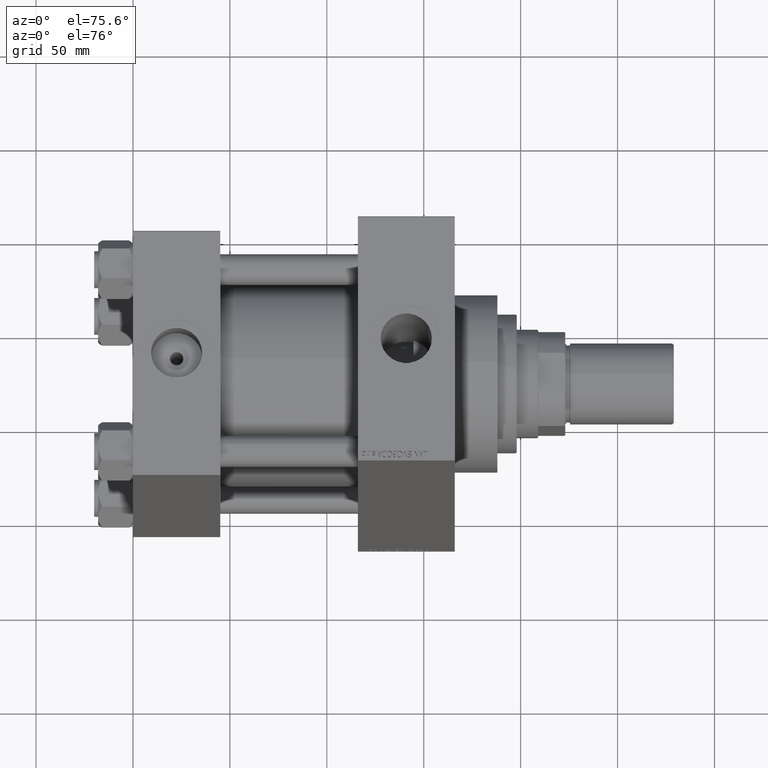
[diagram: clean part render]
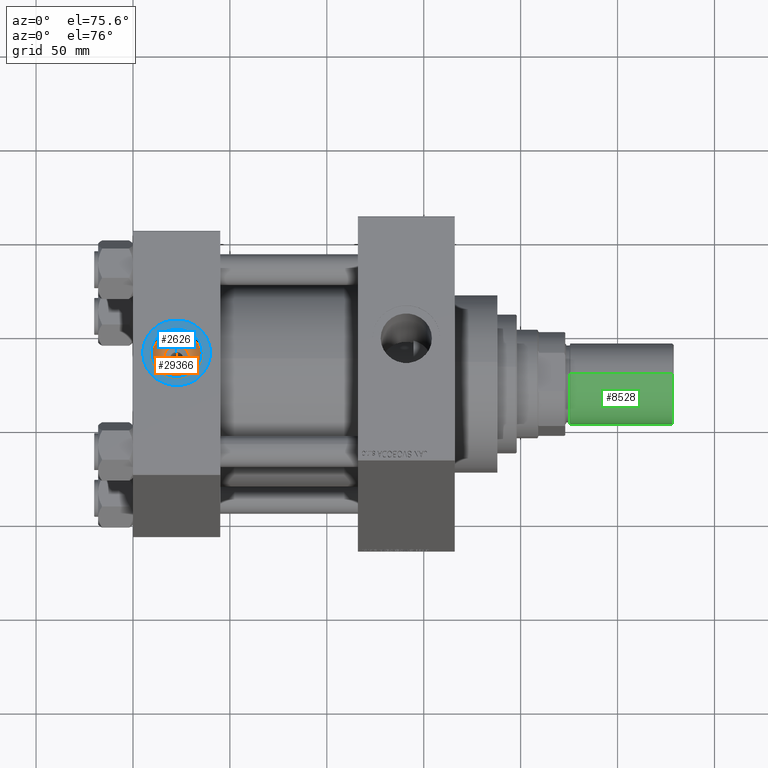
[diagram: same view with three faces highlighted in distinct colors, each labeled with its STEP entity id]
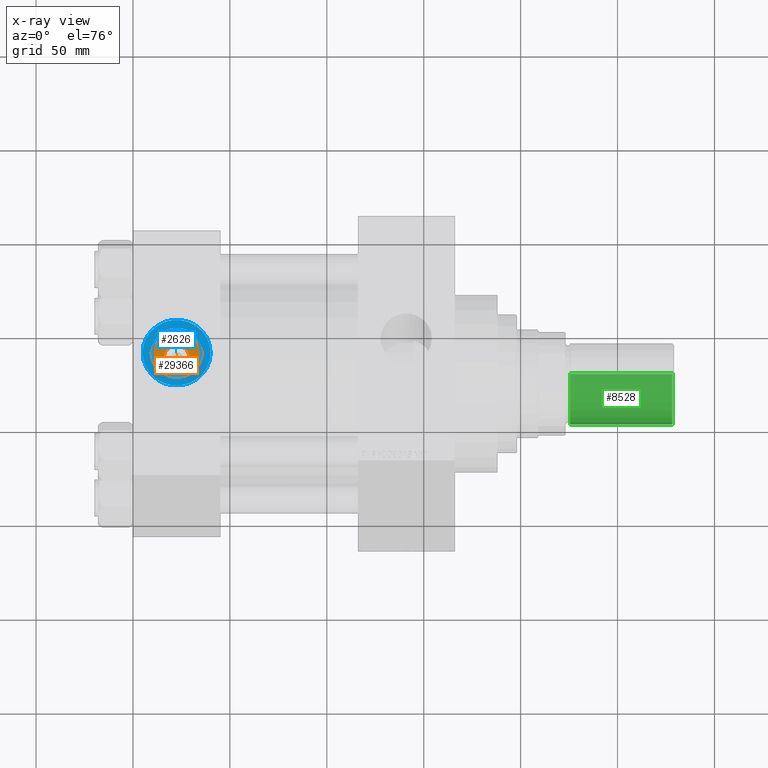
[diagram: x-ray of the same camera — body ghosted, the three highlighted faces saturated]
A machine part, auxiliary view with three faces highlighted in distinct colors.
The next image is the same camera in x-ray (body ghosted, the three faces saturated) — at least one of them is partly hidden behind the body in this view.
Their STEP definitions:

[orange] entity #29366 — the highlighted planar face has unit normal (0, 0, 1).
#976 = FACE_OUTER_BOUND ( 'NONE', #24363, .T. ) ;
#1874 = DIRECTION ( 'NONE',  ( 0.000000000000000000, 0.000000000000000000, 1.000000000000000000 ) ) ;
#3057 = DIRECTION ( 'NONE',  ( -0.000000000000000000, -0.000000000000000000, -1.000000000000000000 ) ) ;
#4096 = CARTESIAN_POINT ( 'NONE',  ( 29.14000000000008939, -8.673617379884035472E-15, 54.19999999999999574 ) ) ;
#4674 = ORIENTED_EDGE ( 'NONE', *, *, #47200, .T. ) ;
#4759 = VERTEX_POINT ( 'NONE', #4096 ) ;
#4782 = CARTESIAN_POINT ( 'NONE',  ( 15.85999999999990884, -7.860451905250181530E-15, 54.19999999999999574 ) ) ;
#5343 = AXIS2_PLACEMENT_3D ( 'NONE', #6513, #28556, #9936 ) ;
#5919 = EDGE_CURVE ( 'NONE', #4759, #9708, #40827, .T. ) ;
#6513 = CARTESIAN_POINT ( 'NONE',  ( 22.50000000000000000, -8.673617379884035472E-15, 54.19999999999999574 ) ) ;
#7707 = CIRCLE ( 'NONE', #5343, 13.22000000000000242 ) ;
#7813 = VERTEX_POINT ( 'NONE', #33906 ) ;
#9708 = VERTEX_POINT ( 'NONE', #4782 ) ;
#9936 = DIRECTION ( 'NONE',  ( 1.000000000000000000, 0.000000000000000000, 0.000000000000000000 ) ) ;
#13050 = CARTESIAN_POINT ( 'NONE',  ( 22.50000000000000000, -8.673617379884035472E-15, 54.19999999999999574 ) ) ;
#14776 = CIRCLE ( 'NONE', #40562, 6.640000000000090274 ) ;
#15517 = EDGE_CURVE ( 'NONE', #44697, #7813, #7707, .T. ) ;
#15907 = PLANE ( 'NONE',  #23671 ) ;
#16668 = ORIENTED_EDGE ( 'NONE', *, *, #37467, .T. ) ;
#20733 = FACE_BOUND ( 'NONE', #32445, .T. ) ;
#23671 = AXIS2_PLACEMENT_3D ( 'NONE', #28090, #1874, #45764 ) ;
#24088 = DIRECTION ( 'NONE',  ( 1.000000000000000000, 0.000000000000000000, 0.000000000000000000 ) ) ;
#24363 = EDGE_LOOP ( 'NONE', ( #34235, #16668 ) ) ;
#24861 = CARTESIAN_POINT ( 'NONE',  ( 22.50000000000000000, -8.673617379884035472E-15, 54.19999999999999574 ) ) ;
#26331 = AXIS2_PLACEMENT_3D ( 'NONE', #33272, #48201, #30323 ) ;
#28090 = CARTESIAN_POINT ( 'NONE',  ( 22.50000000000000000, -8.673617379884035472E-15, 54.19999999999999574 ) ) ;
#28556 = DIRECTION ( 'NONE',  ( 0.000000000000000000, 0.000000000000000000, 1.000000000000000000 ) ) ;
#29366 = ADVANCED_FACE ( 'NONE', ( #20733, #976 ), #15907, .T. ) ;
#30323 = DIRECTION ( 'NONE',  ( 1.000000000000000000, 0.000000000000000000, 0.000000000000000000 ) ) ;
#30398 = ORIENTED_EDGE ( 'NONE', *, *, #5919, .T. ) ;
#30945 = DIRECTION ( 'NONE',  ( -0.000000000000000000, -0.000000000000000000, -1.000000000000000000 ) ) ;
#32189 = DIRECTION ( 'NONE',  ( 1.000000000000000000, 0.000000000000000000, 0.000000000000000000 ) ) ;
#32445 = EDGE_LOOP ( 'NONE', ( #30398, #4674 ) ) ;
#32690 = CARTESIAN_POINT ( 'NONE',  ( 35.71999999999999886, -8.673617379884035472E-15, 54.19999999999999574 ) ) ;
#33272 = CARTESIAN_POINT ( 'NONE',  ( 22.50000000000000000, -8.673617379884035472E-15, 54.19999999999999574 ) ) ;
#33906 = CARTESIAN_POINT ( 'NONE',  ( 9.279999999999994031, -7.054634311411234321E-15, 54.19999999999999574 ) ) ;
#34235 = ORIENTED_EDGE ( 'NONE', *, *, #15517, .T. ) ;
#36449 = CIRCLE ( 'NONE', #26331, 13.22000000000000242 ) ;
#37467 = EDGE_CURVE ( 'NONE', #7813, #44697, #36449, .T. ) ;
#38471 = AXIS2_PLACEMENT_3D ( 'NONE', #13050, #30945, #24088 ) ;
#40562 = AXIS2_PLACEMENT_3D ( 'NONE', #24861, #3057, #32189 ) ;
#40827 = CIRCLE ( 'NONE', #38471, 6.640000000000090274 ) ;
#44697 = VERTEX_POINT ( 'NONE', #32690 ) ;
#45764 = DIRECTION ( 'NONE',  ( 1.000000000000000000, 0.000000000000000000, -0.000000000000000000 ) ) ;
#47200 = EDGE_CURVE ( 'NONE', #9708, #4759, #14776, .T. ) ;
#48201 = DIRECTION ( 'NONE',  ( 0.000000000000000000, 0.000000000000000000, 1.000000000000000000 ) ) ;

[blue] entity #2626 — the highlighted planar face has unit normal (0, 0, 1).
#2626 = ADVANCED_FACE ( 'NONE', ( #27743, #38728 ), #43136, .T. ) ;
#4652 = CARTESIAN_POINT ( 'NONE',  ( 35.71999999999999886, -8.673617379884035472E-15, 64.79999999999999716 ) ) ;
#4852 = AXIS2_PLACEMENT_3D ( 'NONE', #25155, #39563, #13618 ) ;
#7835 = EDGE_CURVE ( 'NONE', #38249, #19116, #38032, .T. ) ;
#8339 = CIRCLE ( 'NONE', #22449, 17.50000000000000000 ) ;
#8855 = ORIENTED_EDGE ( 'NONE', *, *, #7835, .F. ) ;
#9280 = CARTESIAN_POINT ( 'NONE',  ( 40.00000000000000000, -8.673617379884035472E-15, 64.79999999999999716 ) ) ;
#9376 = CARTESIAN_POINT ( 'NONE',  ( 22.50000000000000000, -8.673617379884035472E-15, 64.79999999999999716 ) ) ;
#9613 = DIRECTION ( 'NONE',  ( 1.000000000000000000, 0.000000000000000000, -0.000000000000000000 ) ) ;
#9961 = AXIS2_PLACEMENT_3D ( 'NONE', #46235, #28384, #12699 ) ;
#12192 = DIRECTION ( 'NONE',  ( 0.000000000000000000, 0.000000000000000000, 1.000000000000000000 ) ) ;
#12434 = CARTESIAN_POINT ( 'NONE',  ( 22.50000000000000000, -8.673617379884035472E-15, 64.79999999999999716 ) ) ;
#12550 = CARTESIAN_POINT ( 'NONE',  ( 22.50000000000000000, -8.673617379884035472E-15, 64.79999999999999716 ) ) ;
#12699 = DIRECTION ( 'NONE',  ( 1.000000000000000000, 0.000000000000000000, 0.000000000000000000 ) ) ;
#13618 = DIRECTION ( 'NONE',  ( 1.000000000000000000, 0.000000000000000000, 0.000000000000000000 ) ) ;
#13793 = EDGE_LOOP ( 'NONE', ( #8855, #46529 ) ) ;
#16524 = CARTESIAN_POINT ( 'NONE',  ( 9.279999999999994031, -7.054634311411234321E-15, 64.79999999999999716 ) ) ;
#18202 = CIRCLE ( 'NONE', #4852, 17.50000000000000000 ) ;
#18572 = CIRCLE ( 'NONE', #9961, 13.22000000000000242 ) ;
#19116 = VERTEX_POINT ( 'NONE', #16524 ) ;
#19199 = ORIENTED_EDGE ( 'NONE', *, *, #39143, .T. ) ;
#20879 = DIRECTION ( 'NONE',  ( 0.000000000000000000, 0.000000000000000000, 1.000000000000000000 ) ) ;
#22449 = AXIS2_PLACEMENT_3D ( 'NONE', #12434, #12192, #45970 ) ;
#24328 = DIRECTION ( 'NONE',  ( 1.000000000000000000, 0.000000000000000000, 0.000000000000000000 ) ) ;
#25155 = CARTESIAN_POINT ( 'NONE',  ( 22.50000000000000000, -8.673617379884035472E-15, 64.79999999999999716 ) ) ;
#25625 = EDGE_LOOP ( 'NONE', ( #19199, #26180 ) ) ;
#26180 = ORIENTED_EDGE ( 'NONE', *, *, #28414, .T. ) ;
#27502 = CARTESIAN_POINT ( 'NONE',  ( 4.999999999999997335, -6.530485481376167224E-15, 64.79999999999999716 ) ) ;
#27743 = FACE_BOUND ( 'NONE', #13793, .T. ) ;
#28384 = DIRECTION ( 'NONE',  ( 0.000000000000000000, 0.000000000000000000, 1.000000000000000000 ) ) ;
#28414 = EDGE_CURVE ( 'NONE', #46397, #40895, #18202, .T. ) ;
#36814 = AXIS2_PLACEMENT_3D ( 'NONE', #12550, #39222, #9613 ) ;
#38032 = CIRCLE ( 'NONE', #40416, 13.22000000000000242 ) ;
#38249 = VERTEX_POINT ( 'NONE', #4652 ) ;
#38728 = FACE_OUTER_BOUND ( 'NONE', #25625, .T. ) ;
#39143 = EDGE_CURVE ( 'NONE', #40895, #46397, #8339, .T. ) ;
#39222 = DIRECTION ( 'NONE',  ( 0.000000000000000000, 0.000000000000000000, 1.000000000000000000 ) ) ;
#39563 = DIRECTION ( 'NONE',  ( 0.000000000000000000, 0.000000000000000000, 1.000000000000000000 ) ) ;
#40071 = EDGE_CURVE ( 'NONE', #19116, #38249, #18572, .T. ) ;
#40416 = AXIS2_PLACEMENT_3D ( 'NONE', #9376, #20879, #24328 ) ;
#40895 = VERTEX_POINT ( 'NONE', #9280 ) ;
#43136 = PLANE ( 'NONE',  #36814 ) ;
#45970 = DIRECTION ( 'NONE',  ( 1.000000000000000000, 0.000000000000000000, 0.000000000000000000 ) ) ;
#46235 = CARTESIAN_POINT ( 'NONE',  ( 22.50000000000000000, -8.673617379884035472E-15, 64.79999999999999716 ) ) ;
#46397 = VERTEX_POINT ( 'NONE', #27502 ) ;
#46529 = ORIENTED_EDGE ( 'NONE', *, *, #40071, .F. ) ;

[green] entity #8528 — the highlighted cylindrical surface (partial cylindrical patch) has radius 21 mm, axis along (1, -0, -0).
#3555 = DIRECTION ( 'NONE',  ( -1.000000000000000000, 0.000000000000000000, 0.000000000000000000 ) ) ;
#5981 = DIRECTION ( 'NONE',  ( -0.000000000000000000, -0.000000000000000000, -1.000000000000000000 ) ) ;
#6019 = AXIS2_PLACEMENT_3D ( 'NONE', #36855, #11151, #3555 ) ;
#6994 = CYLINDRICAL_SURFACE ( 'NONE', #6019, 21.00000000000000000 ) ;
#7464 = VERTEX_POINT ( 'NONE', #8237 ) ;
#8237 = CARTESIAN_POINT ( 'NONE',  ( 21.00000000000000000, 2.571758278209441661E-15, 53.50000000000000000 ) ) ;
#8528 = ADVANCED_FACE ( 'NONE', ( #44199 ), #6994, .T. ) ;
#11151 = DIRECTION ( 'NONE',  ( -0.000000000000000000, -0.000000000000000000, -1.000000000000000000 ) ) ;
#12331 = CARTESIAN_POINT ( 'NONE',  ( -21.00000000000000000, 0.000000000000000000, 53.50000000000000000 ) ) ;
#12794 = VERTEX_POINT ( 'NONE', #37061 ) ;
#13189 = CIRCLE ( 'NONE', #19452, 21.00000000000000000 ) ;
#13830 = VECTOR ( 'NONE', #5981, 1000.000000000000000 ) ;
#14161 = VERTEX_POINT ( 'NONE', #27806 ) ;
#14932 = ORIENTED_EDGE ( 'NONE', *, *, #47355, .F. ) ;
#15867 = ORIENTED_EDGE ( 'NONE', *, *, #36996, .T. ) ;
#16602 = EDGE_CURVE ( 'NONE', #28332, #12794, #21844, .T. ) ;
#18716 = EDGE_LOOP ( 'NONE', ( #43026, #14932, #15867, #38815 ) ) ;
#19219 = DIRECTION ( 'NONE',  ( 1.000000000000000000, 0.000000000000000000, 0.000000000000000000 ) ) ;
#19450 = DIRECTION ( 'NONE',  ( -0.000000000000000000, -0.000000000000000000, -1.000000000000000000 ) ) ;
#19452 = AXIS2_PLACEMENT_3D ( 'NONE', #20141, #19664, #34829 ) ;
#19664 = DIRECTION ( 'NONE',  ( 0.000000000000000000, 0.000000000000000000, 1.000000000000000000 ) ) ;
#20141 = CARTESIAN_POINT ( 'NONE',  ( 0.000000000000000000, 0.000000000000000000, 53.50000000000000000 ) ) ;
#21844 = CIRCLE ( 'NONE', #45270, 21.00000000000000000 ) ;
#23372 = LINE ( 'NONE', #12331, #23900 ) ;
#23900 = VECTOR ( 'NONE', #19450, 1000.000000000000000 ) ;
#27544 = CARTESIAN_POINT ( 'NONE',  ( 0.000000000000000000, 0.000000000000000000, 0.7999999999999882760 ) ) ;
#27806 = CARTESIAN_POINT ( 'NONE',  ( -21.00000000000000000, 0.000000000000000000, 53.50000000000000000 ) ) ;
#28332 = VERTEX_POINT ( 'NONE', #34689 ) ;
#34627 = DIRECTION ( 'NONE',  ( -0.000000000000000000, -0.000000000000000000, 1.000000000000000000 ) ) ;
#34689 = CARTESIAN_POINT ( 'NONE',  ( -21.00000000000000000, 0.000000000000000000, 0.7999999999999882760 ) ) ;
#34829 = DIRECTION ( 'NONE',  ( 1.000000000000000000, 0.000000000000000000, 0.000000000000000000 ) ) ;
#36855 = CARTESIAN_POINT ( 'NONE',  ( 0.000000000000000000, 0.000000000000000000, 53.50000000000000000 ) ) ;
#36996 = EDGE_CURVE ( 'NONE', #14161, #28332, #23372, .T. ) ;
#37061 = CARTESIAN_POINT ( 'NONE',  ( 21.00000000000000000, 2.571758278209441661E-15, 0.7999999999999882760 ) ) ;
#38815 = ORIENTED_EDGE ( 'NONE', *, *, #16602, .T. ) ;
#38818 = EDGE_CURVE ( 'NONE', #7464, #12794, #39282, .T. ) ;
#39282 = LINE ( 'NONE', #42706, #13830 ) ;
#42706 = CARTESIAN_POINT ( 'NONE',  ( 21.00000000000000000, 2.571758278209441661E-15, 53.50000000000000000 ) ) ;
#43026 = ORIENTED_EDGE ( 'NONE', *, *, #38818, .F. ) ;
#44199 = FACE_OUTER_BOUND ( 'NONE', #18716, .T. ) ;
#45270 = AXIS2_PLACEMENT_3D ( 'NONE', #27544, #34627, #19219 ) ;
#47355 = EDGE_CURVE ( 'NONE', #14161, #7464, #13189, .T. ) ;